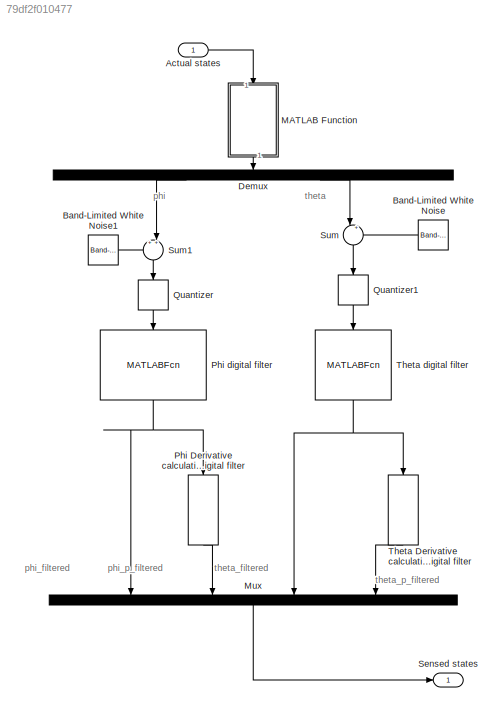
MODEL slx_79df2f010477
KIND model
CONFIG AbsTol = auto
CONFIG EnableMultiTasking = off
CONFIG FixedStep = auto
CONFIG MaxStep = auto
CONFIG MinStep = auto
CONFIG RelTol = 1e-3
CONFIG SampleTimeConstraint = Unconstrained
CONFIG Solver = VariableStepAuto
CONFIG SolverName = VariableStepAuto
CONFIG StartTime = 0.0
CONFIG StopTime = 10.0
BLOCK [Inport] Actual states
  IconDisplay = Port number
  PortDimensions = 4
  SampleTime = Ts
BLOCK [Reference] Band-Limited White Noise  REF=simulink/Sources/Band-Limited
White Noise
  Ports = [0, 1]
  SourceBlock = simulink/Sources/Band-Limited\nWhite Noise
  SourceProductBaseCode = SL
  SourceProductName = Simulink
  SourceType = Band-Limited White Noise.
BLOCK [Reference] Band-Limited White Noise1  REF=simulink/Sources/Band-Limited
White Noise
  Ports = [0, 1]
  SourceBlock = simulink/Sources/Band-Limited\nWhite Noise
  SourceProductBaseCode = SL
  SourceProductName = Simulink
  SourceType = Band-Limited White Noise.
BLOCK [Demux] Demux
  DisplayOption = bar
  Outputs = 2
  Ports = [1, 2]
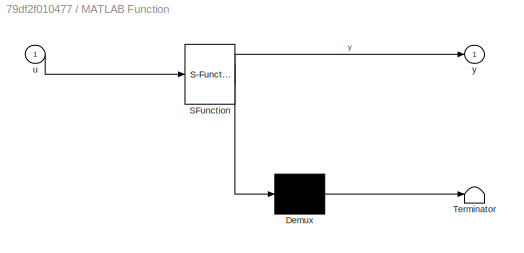
BLOCK [SubSystem] MATLAB Function
  ErrorFcn = Stateflow.Translate.translate
  PermitHierarchicalResolution = ExplicitOnly
  Ports = [1, 1]
  RequestExecContextInheritance = off
  SFBlockType = MATLAB Function
  TreatAsAtomicUnit = on
BLOCK [Demux] MATLAB Function/ Demux 
  Outputs = 1
  Ports = [1, 1]
BLOCK [S-Function] MATLAB Function/ SFunction 
  EnableBusSupport = on
  FunctionName = sf_sfun
  PortCounts = [1 2]
  Ports = [1, 2]
  SFcnIsStateOwnerBlock = off
  SFunctionDeploymentMode = off
  Tag = Stateflow S-Function 4
BLOCK [Terminator] MATLAB Function/ Terminator 
BLOCK [Inport] MATLAB Function/u
  IconDisplay = Port number
BLOCK [Outport] MATLAB Function/y
  IconDisplay = Port number
BLOCK [Mux] Mux
  DisplayOption = bar
  Ports = [4, 1]
BLOCK [MATLABFcn] Phi Derivative calculation and digital filter
  MATLABFcn = phi_p_filter
  Ports = [1, 1]
BLOCK [MATLABFcn] Phi digital filter
  MATLABFcn = phi_filter
  Ports = [1, 1]
BLOCK [Quantizer] Quantizer
  QuantizationInterval = 1/sensitivity_encoder
BLOCK [Quantizer] Quantizer1
  QuantizationInterval = 1/sensitivity_giroscopio
BLOCK [Outport] Sensed states
  IconDisplay = Port number
BLOCK [Sum] Sum
  IconShape = round
  InputSameDT = off
  Inputs = |++
  OutDataTypeStr = Inherit: Inherit via internal rule
  Ports = [2, 1]
  SaturateOnIntegerOverflow = off
BLOCK [Sum] Sum1
  IconShape = round
  InputSameDT = off
  Inputs = ++|
  OutDataTypeStr = Inherit: Inherit via internal rule
  Ports = [2, 1]
  SaturateOnIntegerOverflow = off
BLOCK [MATLABFcn] Theta Derivative calculation and digital filter
  MATLABFcn = theta_p_filter
  Ports = [1, 1]
BLOCK [MATLABFcn] Theta digital filter
  MATLABFcn = theta_filter
  Ports = [1, 1]
ANNOTATION (root): phi
ANNOTATION (root): phi_filtered
ANNOTATION (root): phi_p_filtered
ANNOTATION (root): theta
ANNOTATION (root): theta_filtered
ANNOTATION (root): theta_p_filtered
LINE Actual states:1 -> MATLAB Function:1
LINE Band-Limited White Noise1:1 -> Sum1:1
LINE Band-Limited White Noise:1 -> Sum:2
LINE Demux:1 -> Sum1:2
LINE Demux:2 -> Sum:1
LINE MATLAB Function:1 -> Demux:1
LINE Mux:1 -> Sensed states:1
LINE Phi Derivative calculation and digital filter:1 -> Mux:2
NET Phi digital filter:1 -> Mux:1, Phi Derivative calculation and digital filter:1
LINE Quantizer1:1 -> Theta digital filter:1
LINE Quantizer:1 -> Phi digital filter:1
LINE Sum1:1 -> Quantizer:1
LINE Sum:1 -> Quantizer1:1
LINE Theta Derivative calculation and digital filter:1 -> Mux:4
NET Theta digital filter:1 -> Mux:3, Theta Derivative calculation and digital filter:1
note: NET lines group one-source signal fan-out (src -> all destinations, sorted); 1:1 wires keep LINE
CHART MATLAB Function states=1 transitions=1
  STATE_LABEL 'eML_blk_kernel()'
  STATE_LABEL 'SCRIPT:\nfunction y = fcn(u)\n\ny = [u(1),u(3)];\n'
